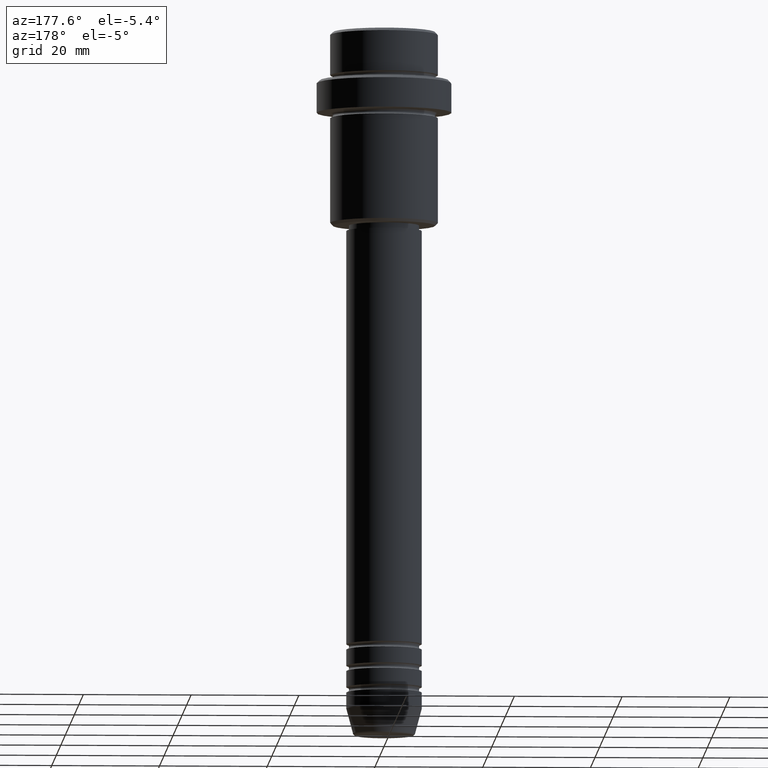
[diagram: clean part render]
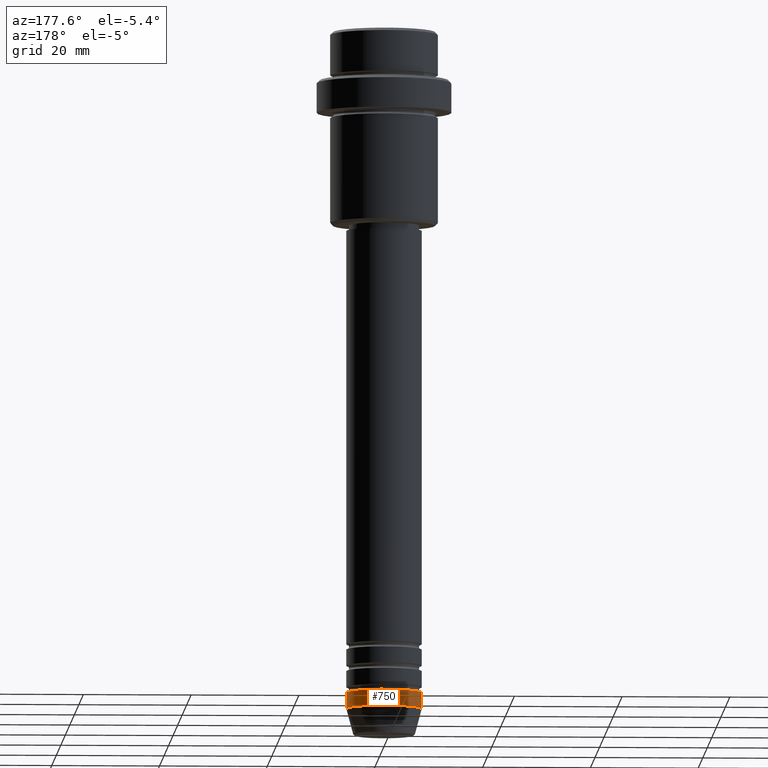
[diagram: same view with one face highlighted and labeled with its STEP entity id]
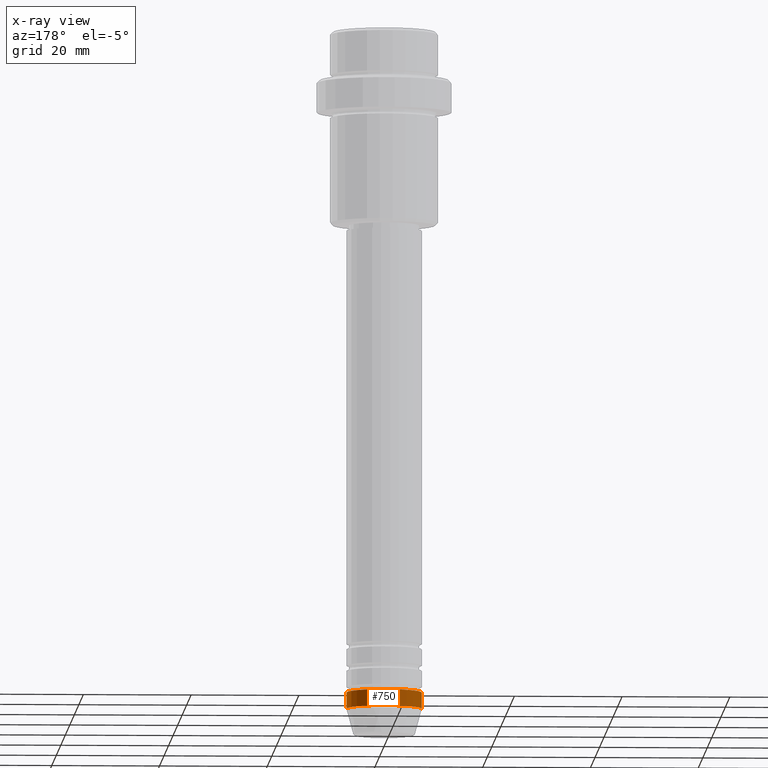
[diagram: x-ray of the same camera — body ghosted, the highlighted face saturated]
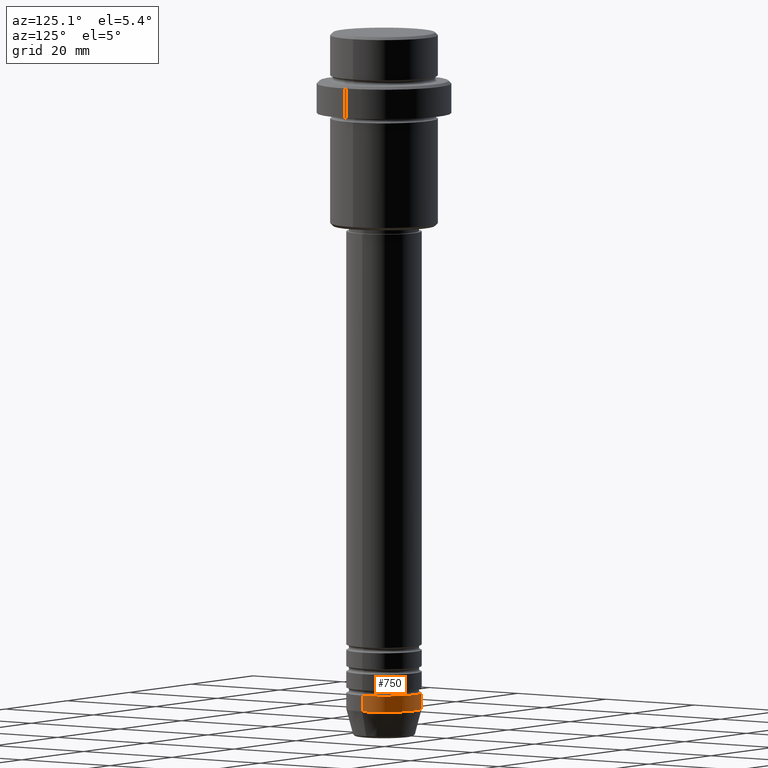
[diagram: same view with one face highlighted and labeled with its STEP entity id]
A machine part, auxiliary view. The second image highlights one B-rep face of the part: STEP entity #750.
The next image is the same camera in x-ray: the body ghosted, the highlighted face saturated — about 0% of this face is hidden behind the body in this view.
A second angle (auxiliary view) of the same face is appended — the face is thin or edge-on in the first view.
In plain terms, the highlighted cylindrical surface (partial cylindrical patch) has radius 7 mm, axis along (-0, -0, 1).
Its self-contained STEP definition (entity closure, byte-faithful):
#43 = CARTESIAN_POINT ( 'NONE',  ( 7.000000000000000000, 0.000000000000000000, -123.0000000000000000 ) ) ;
#49 = CIRCLE ( 'NONE', #1261, 7.000000000000000000 ) ;
#66 = EDGE_CURVE ( 'NONE', #593, #1273, #49, .T. ) ;
#96 = CARTESIAN_POINT ( 'NONE',  ( 0.000000000000000000, 0.000000000000000000, -126.0000000000000000 ) ) ;
#116 = DIRECTION ( 'NONE',  ( 1.000000000000000000, 0.000000000000000000, 0.000000000000000000 ) ) ;
#188 = LINE ( 'NONE', #844, #320 ) ;
#212 = EDGE_CURVE ( 'NONE', #926, #905, #252, .T. ) ;
#215 = EDGE_LOOP ( 'NONE', ( #1211, #885, #262, #1187 ) ) ;
#241 = DIRECTION ( 'NONE',  ( -0.000000000000000000, -0.000000000000000000, 1.000000000000000000 ) ) ;
#246 = EDGE_CURVE ( 'NONE', #926, #593, #188, .T. ) ;
#252 = CIRCLE ( 'NONE', #1084, 7.000000000000000000 ) ;
#262 = ORIENTED_EDGE ( 'NONE', *, *, #66, .F. ) ;
#320 = VECTOR ( 'NONE', #1192, 1000.000000000000000 ) ;
#352 = DIRECTION ( 'NONE',  ( -0.000000000000000000, -0.000000000000000000, 1.000000000000000000 ) ) ;
#431 = CARTESIAN_POINT ( 'NONE',  ( 0.000000000000000000, 0.000000000000000000, 0.000000000000000000 ) ) ;
#447 = CARTESIAN_POINT ( 'NONE',  ( -7.000000000000000000, 8.572527594031473190E-16, -123.0000000000000000 ) ) ;
#466 = AXIS2_PLACEMENT_3D ( 'NONE', #431, #352, #116 ) ;
#500 = CARTESIAN_POINT ( 'NONE',  ( 0.000000000000000000, 0.000000000000000000, -123.0000000000000000 ) ) ;
#516 = DIRECTION ( 'NONE',  ( -0.000000000000000000, -0.000000000000000000, 1.000000000000000000 ) ) ;
#573 = LINE ( 'NONE', #1121, #1205 ) ;
#593 = VERTEX_POINT ( 'NONE', #43 ) ;
#750 = ADVANCED_FACE ( 'NONE', ( #1218 ), #980, .T. ) ;
#844 = CARTESIAN_POINT ( 'NONE',  ( 7.000000000000000000, 0.000000000000000000, 0.000000000000000000 ) ) ;
#885 = ORIENTED_EDGE ( 'NONE', *, *, #1369, .T. ) ;
#905 = VERTEX_POINT ( 'NONE', #1325 ) ;
#926 = VERTEX_POINT ( 'NONE', #1246 ) ;
#980 = CYLINDRICAL_SURFACE ( 'NONE', #466, 7.000000000000000000 ) ;
#1033 = DIRECTION ( 'NONE',  ( 1.000000000000000000, 0.000000000000000000, 0.000000000000000000 ) ) ;
#1084 = AXIS2_PLACEMENT_3D ( 'NONE', #96, #516, #1412 ) ;
#1121 = CARTESIAN_POINT ( 'NONE',  ( -7.000000000000000000, 8.572527594031473190E-16, 0.000000000000000000 ) ) ;
#1187 = ORIENTED_EDGE ( 'NONE', *, *, #246, .F. ) ;
#1192 = DIRECTION ( 'NONE',  ( -0.000000000000000000, -0.000000000000000000, 1.000000000000000000 ) ) ;
#1205 = VECTOR ( 'NONE', #241, 1000.000000000000000 ) ;
#1211 = ORIENTED_EDGE ( 'NONE', *, *, #212, .T. ) ;
#1218 = FACE_OUTER_BOUND ( 'NONE', #215, .T. ) ;
#1246 = CARTESIAN_POINT ( 'NONE',  ( 7.000000000000000000, 0.000000000000000000, -126.0000000000000000 ) ) ;
#1261 = AXIS2_PLACEMENT_3D ( 'NONE', #500, #1366, #1033 ) ;
#1273 = VERTEX_POINT ( 'NONE', #447 ) ;
#1325 = CARTESIAN_POINT ( 'NONE',  ( -7.000000000000000000, 8.572527594031473190E-16, -126.0000000000000000 ) ) ;
#1366 = DIRECTION ( 'NONE',  ( -0.000000000000000000, -0.000000000000000000, 1.000000000000000000 ) ) ;
#1369 = EDGE_CURVE ( 'NONE', #905, #1273, #573, .T. ) ;
#1412 = DIRECTION ( 'NONE',  ( 1.000000000000000000, 0.000000000000000000, 0.000000000000000000 ) ) ;